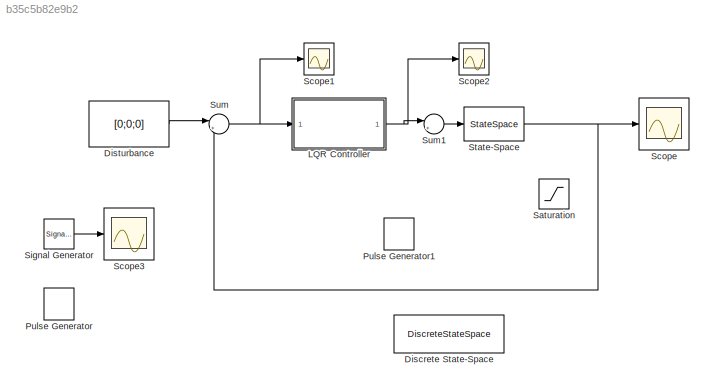
MODEL slx_b35c5b82e9b2
KIND model
CONFIG AbsTol = auto
CONFIG FixedStep = 0.02
CONFIG MaxStep = auto
CONFIG MinStep = auto
CONFIG RelTol = 1e-3
CONFIG SampleTimeConstraint = Unconstrained
CONFIG Solver = ode45
CONFIG SolverMode = Auto
CONFIG SolverName = ode45
CONFIG StartTime = 0.0
CONFIG StopTime = 10.0
BLOCK [DiscreteStateSpace] Discrete State-Space
  SampleTime = 0.05
BLOCK [Constant] Disturbance
  Value = [0;0;0]
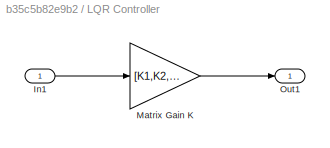
BLOCK [SubSystem] LQR Controller
  Ports = [1, 1]
  RequestExecContextInheritance = off
BLOCK [Inport] LQR Controller/In1
  IconDisplay = Port number
BLOCK [Gain] LQR Controller/Matrix Gain K
  Gain = [K1,K2,K3]
  Multiplication = Matrix(K*u)
  OutDataTypeStr = Inherit: Inherit via internal rule
  ParamDataTypeStr = Inherit: Inherit via internal rule
  SaturateOnIntegerOverflow = off
BLOCK [Outport] LQR Controller/Out1
  IconDisplay = Port number
BLOCK [DiscretePulseGenerator] Pulse Generator
  Period = 10
  Ports = [0, 1]
  PulseType = Time based
  PulseWidth = 5
BLOCK [DiscretePulseGenerator] Pulse Generator1
  Period = 10
  Ports = [0, 1]
  PulseType = Time based
  PulseWidth = 5
BLOCK [Saturate] Saturation
  InputPortMap = u0
  Ports = [1, 1]
BLOCK [Scope] Scope
  Floating = off
  LegendLocations = 0.78411     0.81235     0.13057    0.099743
  NumInputPorts = 1
  Ports = [1]
  SampleTime = 0.02
  ShowLegends = on
BLOCK [Scope] Scope1
  Floating = off
  NumInputPorts = 1
  Ports = [1]
  SaveName = ScopeData1
BLOCK [Scope] Scope2
  Floating = off
  NumInputPorts = 1
  Ports = [1]
  SaveName = ScopeData2
  TimeRange = 7.524253332715403e-05
  YMax = -182.7734635416666
  YMin = -182.7912760416666
BLOCK [Scope] Scope3
  Floating = off
  LegendLocations = 0.44959     0.73361      0.4321    0.085077
  NumInputPorts = 1
  Ports = [1]
  SampleTime = 0.02
  SaveName = ScopeData3
  ShowLegends = on
BLOCK [SignalGenerator] Signal Generator
  Ports = [0, 1]
  Units = rad/sec
  WaveForm = square
BLOCK [StateSpace] State-Space
  A = A
  B = B
  C = eye(3)
  ContinuousStateAttributes = {'a', 'b', 'c'}
  D = zeros(3,1)
  Ports = [1, 1]
  X0 = [0.1;0;0]
BLOCK [Sum] Sum
  IconShape = round
  InputSameDT = off
  Inputs = |+-
  OutDataTypeStr = Inherit: Inherit via internal rule
  Ports = [2, 1]
  SaturateOnIntegerOverflow = off
BLOCK [Sum] Sum1
  IconShape = round
  InputSameDT = off
  Inputs = |++
  OutDataTypeStr = Inherit: Inherit via internal rule
  Ports = [2, 1]
  SaturateOnIntegerOverflow = off
LINE Disturbance:1 -> Sum:1
LINE LQR Controller/In1:1 -> LQR Controller/Matrix Gain K:1
LINE LQR Controller/Matrix Gain K:1 -> LQR Controller/Out1:1
NET LQR Controller:1 -> Scope2:1, Sum1:1
LINE Signal Generator:1 -> Scope3:1
NET State-Space:1 -> Scope:1, Sum:2
LINE Sum1:1 -> State-Space:1
NET Sum:1 -> LQR Controller:1, Scope1:1
note: NET lines group one-source signal fan-out (src -> all destinations, sorted); 1:1 wires keep LINE
